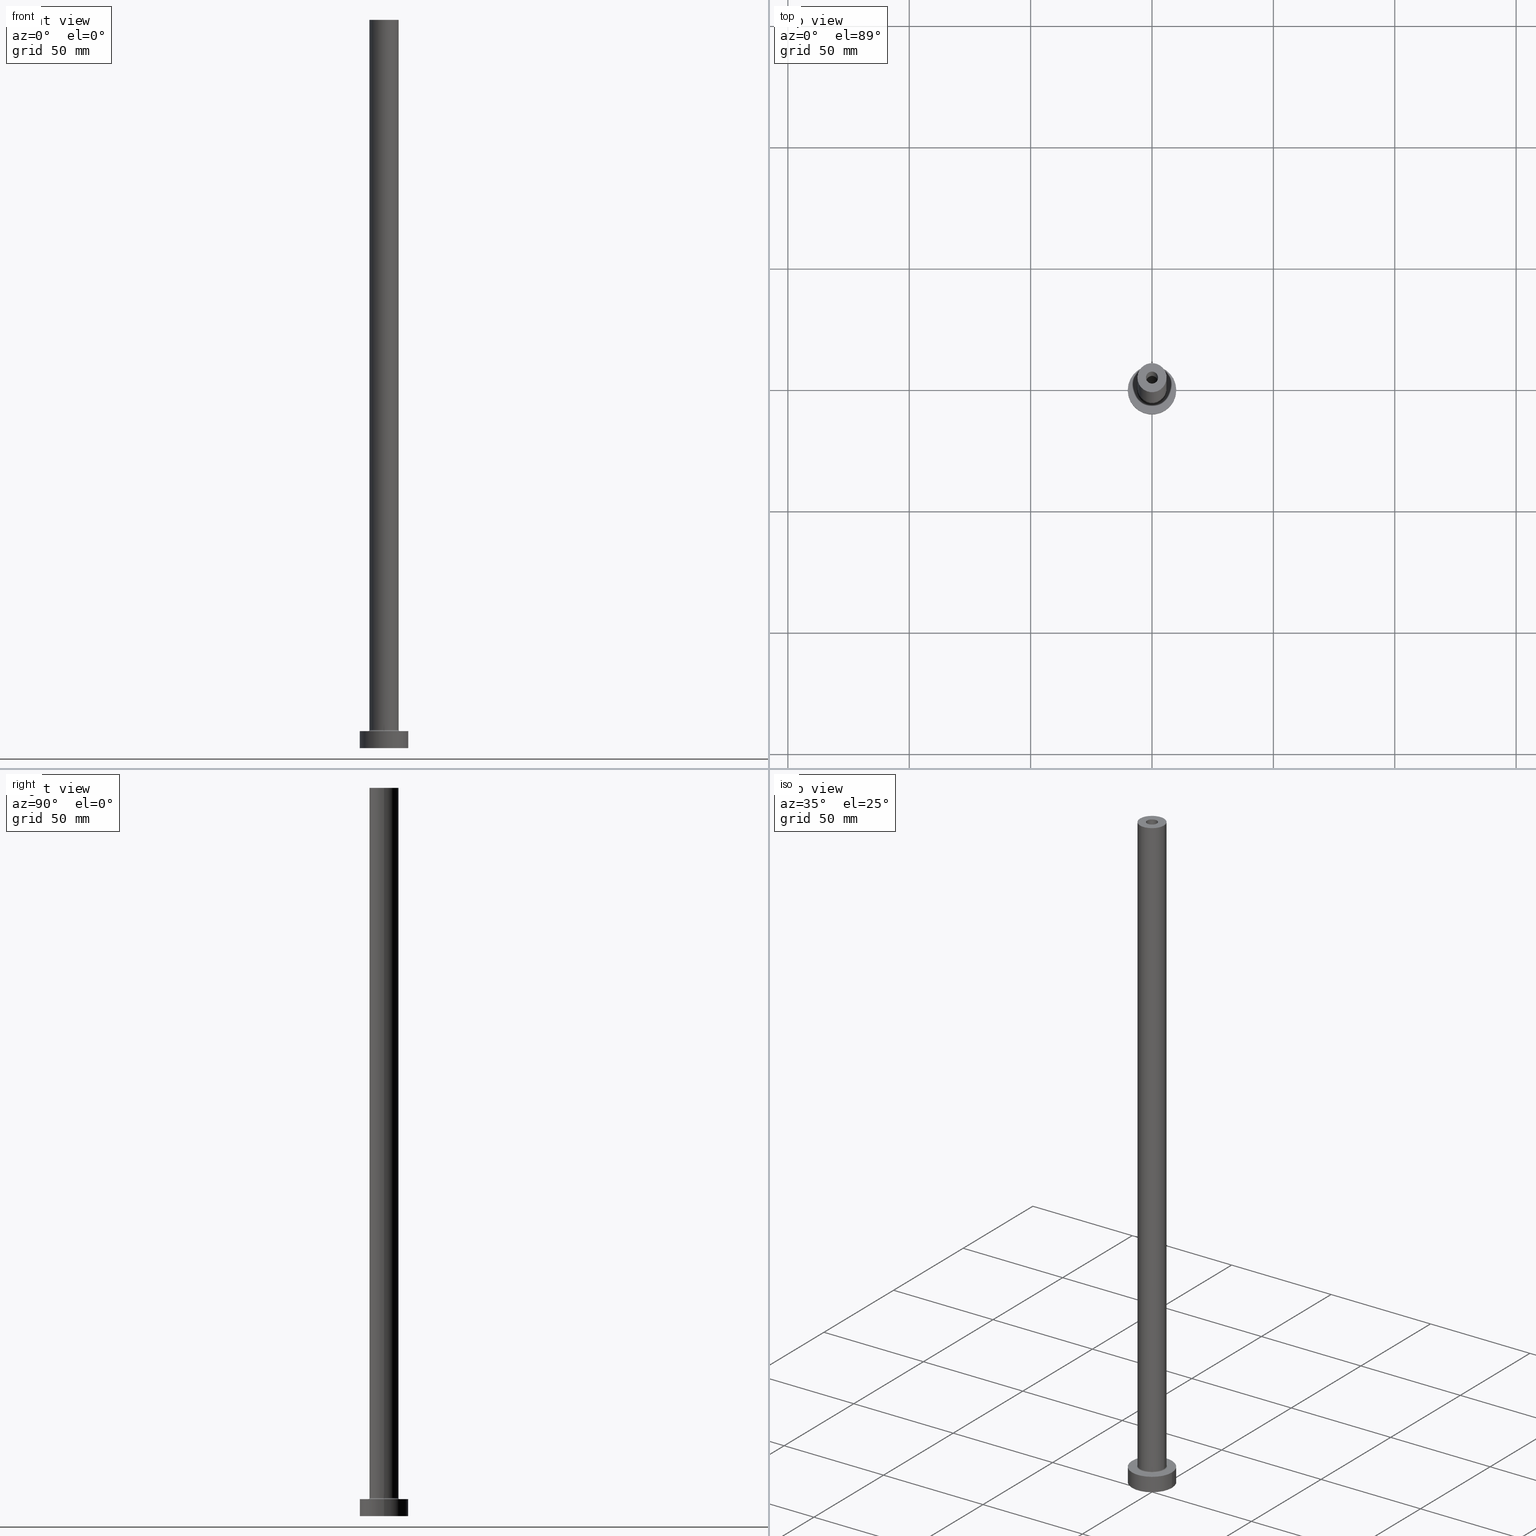
[diagram: canonical four-view strip — front | top / right | iso, engineering-drawing reading convention]
A machine part, canonical four-view strip (front | top / right | iso — engineering-drawing reading convention). The complete STEP part file that produces these views, byte-faithful:
ISO-10303-21;
HEADER;
FILE_DESCRIPTION (( 'STEP AP203' ),
    '1' );
FILE_NAME ('137b.STEP',
    '2023-02-13T16:46:04',
    ( '' ),
    ( '' ),
    'SwSTEP 2.0',
    'SolidWorks 2019',
    '' );
FILE_SCHEMA (( 'CONFIG_CONTROL_DESIGN' ));
ENDSEC;

DATA;
#1 = EDGE_CURVE ( 'NONE', #76, #246, #180, .T. ) ;
#2 = VERTEX_POINT ( 'NONE', #245 ) ;
#3 = APPROVAL_STATUS ( 'not_yet_approved' ) ;
#4 = AXIS2_PLACEMENT_3D ( 'NONE', #163, #241, #126 ) ;
#5 = ORIENTED_EDGE ( 'NONE', *, *, #309, .F. ) ;
#6 = DIRECTION ( 'NONE',  ( 1.000000000000000000, 0.000000000000000000, 0.000000000000000000 ) ) ;
#7 = CARTESIAN_POINT ( 'NONE',  ( 0.000000000000000000, 0.000000000000000000, 7.000000000000000000 ) ) ;
#8 = EDGE_LOOP ( 'NONE', ( #287, #356 ) ) ;
#9 = PERSON_AND_ORGANIZATION ( #193, #267 ) ;
#10 = DATE_AND_TIME ( #47, #444 ) ;
#11 = CIRCLE ( 'NONE', #404, 6.000000000000000888 ) ;
#12 = EDGE_LOOP ( 'NONE', ( #44, #411 ) ) ;
#13 = EDGE_CURVE ( 'NONE', #431, #332, #91, .T. ) ;
#14 = EDGE_LOOP ( 'NONE', ( #69, #259, #80, #144 ) ) ;
#15 = DATE_AND_TIME ( #49, #428 ) ;
#16 = AXIS2_PLACEMENT_3D ( 'NONE', #446, #338, #93 ) ;
#17 = LINE ( 'NONE', #234, #452 ) ;
#18 = DIRECTION ( 'NONE',  ( -0.000000000000000000, -0.000000000000000000, -1.000000000000000000 ) ) ;
#19 = PRODUCT_DEFINITION ( 'NEZN�M�', '', #391, #218 ) ;
#20 = CARTESIAN_POINT ( 'NONE',  ( -2.649999999999999911, 0.000000000000000000, 0.000000000000000000 ) ) ;
#21 = AXIS2_PLACEMENT_3D ( 'NONE', #170, #18, #101 ) ;
#22 = CARTESIAN_POINT ( 'NONE',  ( 0.000000000000000000, 0.000000000000000000, 255.0000000000000000 ) ) ;
#23 = ORIENTED_EDGE ( 'NONE', *, *, #449, .T. ) ;
#24 = FACE_BOUND ( 'NONE', #8, .T. ) ;
#25 = AXIS2_PLACEMENT_3D ( 'NONE', #58, #27, #127 ) ;
#26 = DIRECTION ( 'NONE',  ( -1.000000000000000000, 1.224646799147351482E-16, 0.000000000000000000 ) ) ;
#27 = DIRECTION ( 'NONE',  ( 0.000000000000000000, 0.000000000000000000, 1.000000000000000000 ) ) ;
#28 = EDGE_CURVE ( 'NONE', #340, #48, #40, .T. ) ;
#29 = DIRECTION ( 'NONE',  ( 1.000000000000000000, 0.000000000000000000, 0.000000000000000000 ) ) ;
#30 = DIRECTION ( 'NONE',  ( 0.000000000000000000, 0.000000000000000000, -1.000000000000000000 ) ) ;
#31 = ORIENTED_EDGE ( 'NONE', *, *, #37, .T. ) ;
#32 = CARTESIAN_POINT ( 'NONE',  ( 0.000000000000000000, 0.000000000000000000, 255.0000000000000000 ) ) ;
#33 = CIRCLE ( 'NONE', #265, 2.649999999999999911 ) ;
#34 = DIRECTION ( 'NONE',  ( -1.000000000000000000, 0.000000000000000000, 0.000000000000000000 ) ) ;
#35 = EDGE_LOOP ( 'NONE', ( #226, #220, #328, #304 ) ) ;
#36 = PERSON_AND_ORGANIZATION_ROLE ( 'design_supplier' ) ;
#37 = EDGE_CURVE ( 'NONE', #48, #116, #206, .T. ) ;
#38 = DIRECTION ( 'NONE',  ( 0.000000000000000000, 0.000000000000000000, 1.000000000000000000 ) ) ;
#39 = ORIENTED_EDGE ( 'NONE', *, *, #449, .F. ) ;
#40 = CIRCLE ( 'NONE', #148, 6.000000000000000888 ) ;
#41 = VERTEX_POINT ( 'NONE', #198 ) ;
#42 = COORDINATED_UNIVERSAL_TIME_OFFSET ( 1, 0, .AHEAD. ) ;
#43 = AXIS2_PLACEMENT_3D ( 'NONE', #266, #86, #115 ) ;
#44 = ORIENTED_EDGE ( 'NONE', *, *, #13, .F. ) ;
#45 = DIRECTION ( 'NONE',  ( 0.000000000000000000, 0.000000000000000000, -1.000000000000000000 ) ) ;
#46 = ADVANCED_FACE ( 'NONE', ( #376 ), #410, .T. ) ;
#47 = CALENDAR_DATE ( 2023, 13, 2 ) ;
#48 = VERTEX_POINT ( 'NONE', #94 ) ;
#49 = CALENDAR_DATE ( 2023, 13, 2 ) ;
#50 = ORIENTED_EDGE ( 'NONE', *, *, #131, .T. ) ;
#51 = FACE_BOUND ( 'NONE', #119, .T. ) ;
#52 = FACE_OUTER_BOUND ( 'NONE', #451, .T. ) ;
#53 = PRODUCT ( '137b', '137b', '', ( #360 ) ) ;
#54 = DIRECTION ( 'NONE',  ( -0.000000000000000000, -0.000000000000000000, -1.000000000000000000 ) ) ;
#55 = CARTESIAN_POINT ( 'NONE',  ( 0.000000000000000000, 0.000000000000000000, 7.500000000000007105 ) ) ;
#56 = ADVANCED_FACE ( 'NONE', ( #415 ), #339, .F. ) ;
#57 = CYLINDRICAL_SURFACE ( 'NONE', #418, 10.00000000000000000 ) ;
#58 = CARTESIAN_POINT ( 'NONE',  ( 0.000000000000000000, 0.000000000000000000, 7.000000000000000000 ) ) ;
#59 = DIRECTION ( 'NONE',  ( 0.000000000000000000, 0.000000000000000000, 1.000000000000000000 ) ) ;
#60 = DIRECTION ( 'NONE',  ( 0.000000000000000000, 0.000000000000000000, 1.000000000000000000 ) ) ;
#61 = CARTESIAN_POINT ( 'NONE',  ( 0.000000000000000000, 0.000000000000000000, 7.000000000000000000 ) ) ;
#62 = CARTESIAN_POINT ( 'NONE',  ( 0.000000000000000000, 0.000000000000000000, 0.000000000000000000 ) ) ;
#63 = AXIS2_PLACEMENT_3D ( 'NONE', #373, #344, #403 ) ;
#64 = EDGE_CURVE ( 'NONE', #252, #76, #164, .T. ) ;
#65 = LINE ( 'NONE', #121, #124 ) ;
#66 = VERTEX_POINT ( 'NONE', #450 ) ;
#67 = FACE_OUTER_BOUND ( 'NONE', #177, .T. ) ;
#68 = AXIS2_PLACEMENT_3D ( 'NONE', #55, #60, #97 ) ;
#69 = ORIENTED_EDGE ( 'NONE', *, *, #64, .F. ) ;
#70 = EDGE_LOOP ( 'NONE', ( #161, #128 ) ) ;
#71 = APPROVAL ( #399, 'NEUR�EN�' ) ;
#72 = PERSON_AND_ORGANIZATION_ROLE ( 'creator' ) ;
#73 = CARTESIAN_POINT ( 'NONE',  ( 0.000000000000000000, 0.000000000000000000, 300.0000000000000000 ) ) ;
#74 = ORIENTED_EDGE ( 'NONE', *, *, #441, .T. ) ;
#75 = DIRECTION ( 'NONE',  ( -0.000000000000000000, -0.000000000000000000, -1.000000000000000000 ) ) ;
#76 = VERTEX_POINT ( 'NONE', #273 ) ;
#77 = AXIS2_PLACEMENT_3D ( 'NONE', #269, #235, #307 ) ;
#78 = CARTESIAN_POINT ( 'NONE',  ( 0.000000000000000000, 0.000000000000000000, 0.000000000000000000 ) ) ;
#79 = CYLINDRICAL_SURFACE ( 'NONE', #315, 2.500000000000000000 ) ;
#80 = ORIENTED_EDGE ( 'NONE', *, *, #368, .T. ) ;
#81 = CARTESIAN_POINT ( 'NONE',  ( 0.000000000000000000, 0.000000000000000000, 300.0000000000000000 ) ) ;
#82 = VECTOR ( 'NONE', #405, 1000.000000000000000 ) ;
#83 = APPLICATION_PROTOCOL_DEFINITION ( 'international standard', 'config_control_design', 1994, #212 ) ;
#84 = CIRCLE ( 'NONE', #264, 2.500000000000000000 ) ;
#85 = PRODUCT_RELATED_PRODUCT_CATEGORY ( 'detail', '', ( #53 ) ) ;
#86 = DIRECTION ( 'NONE',  ( 0.000000000000000000, 0.000000000000000000, 1.000000000000000000 ) ) ;
#87 = CIRCLE ( 'NONE', #385, 2.500000000000000000 ) ;
#88 = PERSON_AND_ORGANIZATION ( #193, #267 ) ;
#89 = DIRECTION ( 'NONE',  ( 0.000000000000000000, 0.000000000000000000, 1.000000000000000000 ) ) ;
#90 = FACE_OUTER_BOUND ( 'NONE', #35, .T. ) ;
#91 = CIRCLE ( 'NONE', #77, 10.00000000000000000 ) ;
#92 = DIRECTION ( 'NONE',  ( 1.000000000000000000, 0.000000000000000000, 0.000000000000000000 ) ) ;
#93 = DIRECTION ( 'NONE',  ( 1.000000000000000000, 0.000000000000000000, 0.000000000000000000 ) ) ;
#94 = CARTESIAN_POINT ( 'NONE',  ( 6.000000000000000888, 7.347880794884120722E-16, 300.0000000000000000 ) ) ;
#95 = EDGE_LOOP ( 'NONE', ( #182, #50 ) ) ;
#96 = CARTESIAN_POINT ( 'NONE',  ( 0.000000000000000000, 0.000000000000000000, 300.0000000000000000 ) ) ;
#97 = DIRECTION ( 'NONE',  ( 1.000000000000000000, 0.000000000000000000, 0.000000000000000000 ) ) ;
#98 = DIRECTION ( 'NONE',  ( 0.000000000000000000, 0.000000000000000000, 1.000000000000000000 ) ) ;
#99 = CARTESIAN_POINT ( 'NONE',  ( -6.500000000000000888, 7.960204194457796463E-16, 7.500000000000007105 ) ) ;
#100 = EDGE_CURVE ( 'NONE', #372, #250, #65, .T. ) ;
#101 = DIRECTION ( 'NONE',  ( 1.000000000000000000, 0.000000000000000000, 0.000000000000000000 ) ) ;
#102 = DIRECTION ( 'NONE',  ( -0.000000000000000000, -0.000000000000000000, -1.000000000000000000 ) ) ;
#103 = ORIENTED_EDGE ( 'NONE', *, *, #421, .T. ) ;
#104 = EDGE_CURVE ( 'NONE', #246, #76, #228, .T. ) ;
#105 = EDGE_LOOP ( 'NONE', ( #301, #103 ) ) ;
#106 = DIRECTION ( 'NONE',  ( 0.000000000000000000, 0.000000000000000000, -1.000000000000000000 ) ) ;
#107 = ORIENTED_EDGE ( 'NONE', *, *, #421, .F. ) ;
#108 = DIRECTION ( 'NONE',  ( 1.000000000000000000, 0.000000000000000000, 0.000000000000000000 ) ) ;
#109 = AXIS2_PLACEMENT_3D ( 'NONE', #32, #205, #209 ) ;
#110 = DIRECTION ( 'NONE',  ( -1.000000000000000000, 0.000000000000000000, 0.000000000000000000 ) ) ;
#111 = ORIENTED_EDGE ( 'NONE', *, *, #191, .T. ) ;
#112 = DIRECTION ( 'NONE',  ( 1.000000000000000000, 0.000000000000000000, 0.000000000000000000 ) ) ;
#113 = ORIENTED_EDGE ( 'NONE', *, *, #248, .T. ) ;
#114 = ADVANCED_FACE ( 'NONE', ( #203, #384 ), #317, .F. ) ;
#115 = DIRECTION ( 'NONE',  ( 1.000000000000000000, 0.000000000000000000, -0.000000000000000000 ) ) ;
#116 = VERTEX_POINT ( 'NONE', #210 ) ;
#117 = DATE_TIME_ROLE ( 'creation_date' ) ;
#118 = EDGE_CURVE ( 'NONE', #135, #66, #84, .T. ) ;
#119 = EDGE_LOOP ( 'NONE', ( #214, #5 ) ) ;
#120 = DIRECTION ( 'NONE',  ( 0.000000000000000000, 0.000000000000000000, 1.000000000000000000 ) ) ;
#121 = CARTESIAN_POINT ( 'NONE',  ( 2.649999999999999911, 3.245314017740485962E-16, 262.4953318805773961 ) ) ;
#122 = DIRECTION ( 'NONE',  ( 0.000000000000000000, 0.000000000000000000, 1.000000000000000000 ) ) ;
#123 = ADVANCED_FACE ( 'NONE', ( #272 ), #175, .F. ) ;
#124 = VECTOR ( 'NONE', #243, 1000.000000000000000 ) ;
#125 = DIRECTION ( 'NONE',  ( 1.000000000000000000, 0.000000000000000000, 0.000000000000000000 ) ) ;
#126 = DIRECTION ( 'NONE',  ( -1.000000000000000000, 0.000000000000000000, 0.000000000000000000 ) ) ;
#127 = DIRECTION ( 'NONE',  ( 1.000000000000000000, 0.000000000000000000, 0.000000000000000000 ) ) ;
#128 = ORIENTED_EDGE ( 'NONE', *, *, #363, .F. ) ;
#129 = CIRCLE ( 'NONE', #151, 10.00000000000000000 ) ;
#130 = AXIS2_PLACEMENT_3D ( 'NONE', #172, #98, #420 ) ;
#131 = EDGE_CURVE ( 'NONE', #147, #2, #442, .T. ) ;
#132 = ORIENTED_EDGE ( 'NONE', *, *, #100, .T. ) ;
#133 = ADVANCED_FACE ( 'NONE', ( #392 ), #422, .T. ) ;
#134 = CARTESIAN_POINT ( 'NONE',  ( 0.000000000000000000, 0.000000000000000000, 7.000000000000000000 ) ) ;
#135 = VERTEX_POINT ( 'NONE', #419 ) ;
#136 = VECTOR ( 'NONE', #416, 1000.000000000000000 ) ;
#137 = DIRECTION ( 'NONE',  ( -1.000000000000000000, 0.000000000000000000, 0.000000000000000000 ) ) ;
#138 = EDGE_LOOP ( 'NONE', ( #152, #460, #242, #280 ) ) ;
#139 = CARTESIAN_POINT ( 'NONE',  ( 0.000000000000000000, 0.000000000000000000, 0.000000000000000000 ) ) ;
#140 = ORIENTED_EDGE ( 'NONE', *, *, #191, .F. ) ;
#141 = CARTESIAN_POINT ( 'NONE',  ( 0.000000000000000000, 0.000000000000000000, 255.0000000000000000 ) ) ;
#142 = CIRCLE ( 'NONE', #440, 6.000000000000000888 ) ;
#143 = DIRECTION ( 'NONE',  ( 0.000000000000000000, 0.000000000000000000, -1.000000000000000000 ) ) ;
#144 = ORIENTED_EDGE ( 'NONE', *, *, #1, .F. ) ;
#145 = EDGE_CURVE ( 'NONE', #340, #252, #430, .T. ) ;
#146 = FACE_BOUND ( 'NONE', #70, .T. ) ;
#147 = VERTEX_POINT ( 'NONE', #215 ) ;
#148 = AXIS2_PLACEMENT_3D ( 'NONE', #350, #408, #380 ) ;
#149 = APPROVAL_DATE_TIME ( #10, #71 ) ;
#150 = ADVANCED_FACE ( 'NONE', ( #67 ), #355, .F. ) ;
#151 = AXIS2_PLACEMENT_3D ( 'NONE', #139, #283, #424 ) ;
#152 = ORIENTED_EDGE ( 'NONE', *, *, #100, .F. ) ;
#153 = ORIENTED_EDGE ( 'NONE', *, *, #456, .F. ) ;
#154 = ORIENTED_EDGE ( 'NONE', *, *, #28, .F. ) ;
#155 = CARTESIAN_POINT ( 'NONE',  ( 10.00000000000000000, 1.224646799147353256E-15, 7.000000000000000000 ) ) ;
#156 = CIRCLE ( 'NONE', #16, 2.649999999999999911 ) ;
#157 = APPROVAL ( #3, 'NEUR�EN�' ) ;
#158 = CARTESIAN_POINT ( 'NONE',  ( 0.000000000000000000, 0.000000000000000000, 300.0000000000000000 ) ) ;
#159 = UNCERTAINTY_MEASURE_WITH_UNIT (LENGTH_MEASURE( 1.000000000000000082E-05 ), #258, 'distance_accuracy_value', 'NONE');
#160 = DIRECTION ( 'NONE',  ( 1.000000000000000000, 0.000000000000000000, -0.000000000000000000 ) ) ;
#161 = ORIENTED_EDGE ( 'NONE', *, *, #347, .F. ) ;
#162 = COORDINATED_UNIVERSAL_TIME_OFFSET ( 1, 0, .AHEAD. ) ;
#163 = CARTESIAN_POINT ( 'NONE',  ( 0.000000000000000000, 0.000000000000000000, 262.4953318805773961 ) ) ;
#164 = CIRCLE ( 'NONE', #335, 0.5000000000000004441 ) ;
#165 = DIRECTION ( 'NONE',  ( 0.000000000000000000, 0.000000000000000000, 1.000000000000000000 ) ) ;
#166 = DIRECTION ( 'NONE',  ( 1.000000000000000000, 0.000000000000000000, 0.000000000000000000 ) ) ;
#167 = ADVANCED_FACE ( 'NONE', ( #394 ), #79, .F. ) ;
#168 = AXIS2_PLACEMENT_3D ( 'NONE', #349, #268, #293 ) ;
#169 = LOCAL_TIME ( 17, 46, 4.000000000000000000, #162 ) ;
#170 = CARTESIAN_POINT ( 'NONE',  ( 0.000000000000000000, 0.000000000000000000, 7.000000000000000000 ) ) ;
#171 = CLOSED_SHELL ( 'NONE', ( #167, #255, #56, #46, #318, #262, #429, #323, #133, #333, #123, #225, #114, #150 ) ) ;
#172 = CARTESIAN_POINT ( 'NONE',  ( 0.000000000000000000, 0.000000000000000000, 7.000000000000000000 ) ) ;
#173 = ORIENTED_EDGE ( 'NONE', *, *, #441, .F. ) ;
#174 = EDGE_CURVE ( 'NONE', #2, #147, #383, .T. ) ;
#175 = TOROIDAL_SURFACE ( 'NONE', #299, 6.500000000000000888, 0.5000000000000000000 ) ;
#176 = LINE ( 'NONE', #219, #437 ) ;
#177 = EDGE_LOOP ( 'NONE', ( #153, #425, #111, #393 ) ) ;
#178 = DIRECTION ( 'NONE',  ( 1.000000000000000000, 0.000000000000000000, 0.000000000000000000 ) ) ;
#179 = ADVANCED_BREP_SHAPE_REPRESENTATION ( '137b', ( #297, #300 ), #244 ) ;
#180 = CIRCLE ( 'NONE', #433, 6.500000000000000888 ) ;
#181 = CYLINDRICAL_SURFACE ( 'NONE', #369, 2.649999999999999911 ) ;
#182 = ORIENTED_EDGE ( 'NONE', *, *, #174, .T. ) ;
#183 = APPLICATION_PROTOCOL_DEFINITION ( 'international standard', 'config_control_design', 1994, #236 ) ;
#184 = ORIENTED_EDGE ( 'NONE', *, *, #118, .T. ) ;
#185 = CIRCLE ( 'NONE', #109, 2.500000000000000000 ) ;
#186 = DIRECTION ( 'NONE',  ( 0.000000000000000000, 0.000000000000000000, 1.000000000000000000 ) ) ;
#187 = AXIS2_PLACEMENT_3D ( 'NONE', #96, #89, #374 ) ;
#188 = LOCAL_TIME ( 17, 46, 4.000000000000000000, #295 ) ;
#189 = CYLINDRICAL_SURFACE ( 'NONE', #4, 2.649999999999999911 ) ;
#190 = PERSON_AND_ORGANIZATION_ROLE ( 'design_owner' ) ;
#191 = EDGE_CURVE ( 'NONE', #41, #66, #176, .T. ) ;
#192 = CARTESIAN_POINT ( 'NONE',  ( 2.500000000000000000, 3.061616997868382648E-16, 300.0000000000000000 ) ) ;
#193 = PERSON ( 'NEUR�EN�', 'NEUR�EN�', 'NEUR�EN�', ('NEUR�EN�'), ('NEUR�EN�'), ('NEUR�EN�') ) ;
#194 = APPROVAL_PERSON_ORGANIZATION ( #305, #407, #263 ) ;
#195 = CARTESIAN_POINT ( 'NONE',  ( -2.649999999999999911, 0.000000000000000000, 255.0000000000000000 ) ) ;
#196 = CC_DESIGN_PERSON_AND_ORGANIZATION_ASSIGNMENT ( #88, #341, ( #279 ) ) ;
#197 = FACE_OUTER_BOUND ( 'NONE', #105, .T. ) ;
#198 = CARTESIAN_POINT ( 'NONE',  ( -2.500000000000000000, 0.000000000000000000, 300.0000000000000000 ) ) ;
#199 = AXIS2_PLACEMENT_3D ( 'NONE', #454, #417, #106 ) ;
#200 = VECTOR ( 'NONE', #45, 1000.000000000000000 ) ;
#201 = SECURITY_CLASSIFICATION_LEVEL ( 'unclassified' ) ;
#202 = CARTESIAN_POINT ( 'NONE',  ( -6.000000000000000888, 0.000000000000000000, 300.0000000000000000 ) ) ;
#203 = FACE_BOUND ( 'NONE', #294, .T. ) ;
#204 = CC_DESIGN_PERSON_AND_ORGANIZATION_ASSIGNMENT ( #253, #36, ( #391 ) ) ;
#205 = DIRECTION ( 'NONE',  ( 0.000000000000000000, 0.000000000000000000, 1.000000000000000000 ) ) ;
#206 = LINE ( 'NONE', #382, #136 ) ;
#207 = CIRCLE ( 'NONE', #63, 2.649999999999999911 ) ;
#208 = CC_DESIGN_APPROVAL ( #71, ( #391 ) ) ;
#209 = DIRECTION ( 'NONE',  ( 1.000000000000000000, 0.000000000000000000, 0.000000000000000000 ) ) ;
#210 = CARTESIAN_POINT ( 'NONE',  ( 6.000000000000000888, 7.347880794884120722E-16, 7.500000000000007105 ) ) ;
#211 = CARTESIAN_POINT ( 'NONE',  ( 0.000000000000000000, 0.000000000000000000, 300.0000000000000000 ) ) ;
#212 = APPLICATION_CONTEXT ( 'configuration controlled 3d designs of mechanical parts and assemblies' ) ;
#213 = EDGE_CURVE ( 'NONE', #332, #431, #129, .T. ) ;
#214 = ORIENTED_EDGE ( 'NONE', *, *, #436, .F. ) ;
#215 = CARTESIAN_POINT ( 'NONE',  ( 10.00000000000000000, 1.224646799147353256E-15, 7.000000000000000000 ) ) ;
#216 = ORIENTED_EDGE ( 'NONE', *, *, #145, .T. ) ;
#217 = PERSON_AND_ORGANIZATION ( #193, #267 ) ;
#218 = DESIGN_CONTEXT ( 'detailed design', #236, 'design' ) ;
#219 = CARTESIAN_POINT ( 'NONE',  ( -2.500000000000000000, 0.000000000000000000, 300.0000000000000000 ) ) ;
#220 = ORIENTED_EDGE ( 'NONE', *, *, #174, .F. ) ;
#221 = DIRECTION ( 'NONE',  ( 0.000000000000000000, 0.000000000000000000, 1.000000000000000000 ) ) ;
#222 = ORIENTED_EDGE ( 'NONE', *, *, #368, .F. ) ;
#223 = EDGE_LOOP ( 'NONE', ( #107, #31, #113, #291 ) ) ;
#224 = PERSON_AND_ORGANIZATION ( #193, #267 ) ;
#225 = ADVANCED_FACE ( 'NONE', ( #358 ), #181, .F. ) ;
#226 = ORIENTED_EDGE ( 'NONE', *, *, #240, .F. ) ;
#227 = APPROVAL_ROLE ( '' ) ;
#228 = CIRCLE ( 'NONE', #21, 6.500000000000000888 ) ;
#229 = ORIENTED_EDGE ( 'NONE', *, *, #64, .T. ) ;
#230 = DATE_AND_TIME ( #343, #169 ) ;
#231 = CARTESIAN_POINT ( 'NONE',  ( 10.00000000000000000, 1.224646799147353256E-15, 0.000000000000000000 ) ) ;
#232 = CC_DESIGN_SECURITY_CLASSIFICATION ( #279, ( #391 ) ) ;
#233 = CARTESIAN_POINT ( 'NONE',  ( 6.500000000000000888, 0.000000000000000000, 7.000000000000002665 ) ) ;
#234 = CARTESIAN_POINT ( 'NONE',  ( -2.649999999999999911, 0.000000000000000000, 262.4953318805773961 ) ) ;
#235 = DIRECTION ( 'NONE',  ( 0.000000000000000000, 0.000000000000000000, 1.000000000000000000 ) ) ;
#236 = APPLICATION_CONTEXT ( 'configuration controlled 3d designs of mechanical parts and assemblies' ) ;
#237 = APPROVAL_STATUS ( 'not_yet_approved' ) ;
#238 = LINE ( 'NONE', #155, #389 ) ;
#239 = CARTESIAN_POINT ( 'NONE',  ( 0.000000000000000000, 0.000000000000000000, 7.500000000000007105 ) ) ;
#240 = EDGE_CURVE ( 'NONE', #147, #332, #238, .T. ) ;
#241 = DIRECTION ( 'NONE',  ( 0.000000000000000000, 0.000000000000000000, -1.000000000000000000 ) ) ;
#242 = ORIENTED_EDGE ( 'NONE', *, *, #271, .T. ) ;
#243 = DIRECTION ( 'NONE',  ( 0.000000000000000000, 0.000000000000000000, -1.000000000000000000 ) ) ;
#244 =( GEOMETRIC_REPRESENTATION_CONTEXT ( 3 ) GLOBAL_UNCERTAINTY_ASSIGNED_CONTEXT ( ( #159 ) ) GLOBAL_UNIT_ASSIGNED_CONTEXT ( ( #258, #357, #336 ) ) REPRESENTATION_CONTEXT ( 'NONE', 'WORKASPACE' ) );
#245 = CARTESIAN_POINT ( 'NONE',  ( -10.00000000000000000, 0.000000000000000000, 7.000000000000000000 ) ) ;
#246 = VERTEX_POINT ( 'NONE', #233 ) ;
#247 = FACE_OUTER_BOUND ( 'NONE', #95, .T. ) ;
#248 = EDGE_CURVE ( 'NONE', #116, #252, #11, .T. ) ;
#249 = CARTESIAN_POINT ( 'NONE',  ( -6.000000000000000888, 0.000000000000000000, 300.0000000000000000 ) ) ;
#250 = VERTEX_POINT ( 'NONE', #406 ) ;
#251 = DIRECTION ( 'NONE',  ( -0.000000000000000000, -0.000000000000000000, -1.000000000000000000 ) ) ;
#252 = VERTEX_POINT ( 'NONE', #370 ) ;
#253 = PERSON_AND_ORGANIZATION ( #193, #267 ) ;
#254 = VERTEX_POINT ( 'NONE', #195 ) ;
#255 = ADVANCED_FACE ( 'NONE', ( #270 ), #189, .F. ) ;
#256 = DIRECTION ( 'NONE',  ( 0.000000000000000000, 0.000000000000000000, 1.000000000000000000 ) ) ;
#257 = ORIENTED_EDGE ( 'NONE', *, *, #131, .F. ) ;
#258 =( LENGTH_UNIT ( ) NAMED_UNIT ( * ) SI_UNIT ( .MILLI., .METRE. ) );
#259 = ORIENTED_EDGE ( 'NONE', *, *, #248, .F. ) ;
#260 = PERSON_AND_ORGANIZATION ( #193, #267 ) ;
#261 = VECTOR ( 'NONE', #75, 1000.000000000000000 ) ;
#262 = ADVANCED_FACE ( 'NONE', ( #90 ), #377, .T. ) ;
#263 = APPROVAL_ROLE ( '' ) ;
#264 = AXIS2_PLACEMENT_3D ( 'NONE', #311, #447, #125 ) ;
#265 = AXIS2_PLACEMENT_3D ( 'NONE', #141, #186, #285 ) ;
#266 = CARTESIAN_POINT ( 'NONE',  ( 0.000000000000000000, 0.000000000000000000, 0.000000000000000000 ) ) ;
#267 = ORGANIZATION ( 'NEUR�EN�', 'NEUR�EN�', '' ) ;
#268 = DIRECTION ( 'NONE',  ( -0.000000000000000000, -0.000000000000000000, -1.000000000000000000 ) ) ;
#269 = CARTESIAN_POINT ( 'NONE',  ( 0.000000000000000000, 0.000000000000000000, 0.000000000000000000 ) ) ;
#270 = FACE_OUTER_BOUND ( 'NONE', #427, .T. ) ;
#271 = EDGE_CURVE ( 'NONE', #254, #353, #17, .T. ) ;
#272 = FACE_OUTER_BOUND ( 'NONE', #14, .T. ) ;
#273 = CARTESIAN_POINT ( 'NONE',  ( -6.500000000000000888, 7.960204194457796463E-16, 7.000000000000002665 ) ) ;
#274 = LOCAL_TIME ( 17, 46, 4.000000000000000000, #42 ) ;
#275 = DIRECTION ( 'NONE',  ( -0.000000000000000000, -0.000000000000000000, -1.000000000000000000 ) ) ;
#276 = DIRECTION ( 'NONE',  ( -0.000000000000000000, -0.000000000000000000, -1.000000000000000000 ) ) ;
#277 = EDGE_LOOP ( 'NONE', ( #173, #229, #455, #222 ) ) ;
#278 = PRODUCT_DEFINITION_SHAPE ( 'NONE', 'NONE',  #19 ) ;
#279 = SECURITY_CLASSIFICATION ( '', '', #201 ) ;
#280 = ORIENTED_EDGE ( 'NONE', *, *, #347, .T. ) ;
#281 = AXIS2_PLACEMENT_3D ( 'NONE', #22, #165, #160 ) ;
#282 = CC_DESIGN_DATE_AND_TIME_ASSIGNMENT ( #432, #117, ( #19 ) ) ;
#283 = DIRECTION ( 'NONE',  ( 0.000000000000000000, 0.000000000000000000, 1.000000000000000000 ) ) ;
#284 = EDGE_LOOP ( 'NONE', ( #39, #423 ) ) ;
#285 = DIRECTION ( 'NONE',  ( 1.000000000000000000, 0.000000000000000000, 0.000000000000000000 ) ) ;
#286 = DIRECTION ( 'NONE',  ( 0.000000000000000000, 0.000000000000000000, -1.000000000000000000 ) ) ;
#287 = ORIENTED_EDGE ( 'NONE', *, *, #104, .T. ) ;
#288 = AXIS2_PLACEMENT_3D ( 'NONE', #73, #251, #137 ) ;
#289 = LINE ( 'NONE', #192, #200 ) ;
#290 = CC_DESIGN_APPROVAL ( #157, ( #19 ) ) ;
#291 = ORIENTED_EDGE ( 'NONE', *, *, #145, .F. ) ;
#292 = APPROVAL_DATE_TIME ( #334, #157 ) ;
#293 = DIRECTION ( 'NONE',  ( -1.000000000000000000, 0.000000000000000000, 0.000000000000000000 ) ) ;
#294 = EDGE_LOOP ( 'NONE', ( #395, #184 ) ) ;
#295 = COORDINATED_UNIVERSAL_TIME_OFFSET ( 1, 0, .AHEAD. ) ;
#296 = EDGE_CURVE ( 'NONE', #372, #254, #207, .T. ) ;
#297 = MANIFOLD_SOLID_BREP ( 'Odebrat vysunut�m4', #171 ) ;
#298 = PERSON_AND_ORGANIZATION ( #193, #267 ) ;
#299 = AXIS2_PLACEMENT_3D ( 'NONE', #239, #378, #314 ) ;
#300 = AXIS2_PLACEMENT_3D ( 'NONE', #78, #221, #6 ) ;
#301 = ORIENTED_EDGE ( 'NONE', *, *, #28, .T. ) ;
#302 = CC_DESIGN_PERSON_AND_ORGANIZATION_ASSIGNMENT ( #224, #190, ( #53 ) ) ;
#303 = LINE ( 'NONE', #439, #82 ) ;
#304 = ORIENTED_EDGE ( 'NONE', *, *, #13, .T. ) ;
#305 = PERSON_AND_ORGANIZATION ( #193, #267 ) ;
#306 = DIRECTION ( 'NONE',  ( -1.000000000000000000, 0.000000000000000000, 0.000000000000000000 ) ) ;
#307 = DIRECTION ( 'NONE',  ( 1.000000000000000000, 0.000000000000000000, 0.000000000000000000 ) ) ;
#308 = APPROVAL_DATE_TIME ( #15, #407 ) ;
#309 = EDGE_CURVE ( 'NONE', #361, #41, #330, .T. ) ;
#310 = FACE_OUTER_BOUND ( 'NONE', #12, .T. ) ;
#311 = CARTESIAN_POINT ( 'NONE',  ( 0.000000000000000000, 0.000000000000000000, 255.0000000000000000 ) ) ;
#312 = DATE_TIME_ROLE ( 'classification_date' ) ;
#313 = CARTESIAN_POINT ( 'NONE',  ( 0.000000000000000000, 0.000000000000000000, 7.500000000000007105 ) ) ;
#314 = DIRECTION ( 'NONE',  ( 1.000000000000000000, 0.000000000000000000, 0.000000000000000000 ) ) ;
#315 = AXIS2_PLACEMENT_3D ( 'NONE', #320, #143, #457 ) ;
#316 = APPROVAL_PERSON_ORGANIZATION ( #260, #71, #227 ) ;
#317 = PLANE ( 'NONE',  #281 ) ;
#318 = ADVANCED_FACE ( 'NONE', ( #52 ), #57, .T. ) ;
#319 = CARTESIAN_POINT ( 'NONE',  ( -10.00000000000000000, 0.000000000000000000, 0.000000000000000000 ) ) ;
#320 = CARTESIAN_POINT ( 'NONE',  ( 0.000000000000000000, 0.000000000000000000, 300.0000000000000000 ) ) ;
#321 = ORIENTED_EDGE ( 'NONE', *, *, #213, .T. ) ;
#322 = CIRCLE ( 'NONE', #199, 0.5000000000000004441 ) ;
#323 = ADVANCED_FACE ( 'NONE', ( #146, #310 ), #434, .F. ) ;
#324 = DIRECTION ( 'NONE',  ( 0.000000000000000000, 0.000000000000000000, -1.000000000000000000 ) ) ;
#325 = ORIENTED_EDGE ( 'NONE', *, *, #354, .F. ) ;
#326 = CALENDAR_DATE ( 2023, 13, 2 ) ;
#327 = CARTESIAN_POINT ( 'NONE',  ( 0.000000000000000000, 0.000000000000000000, 262.4953318805773961 ) ) ;
#328 = ORIENTED_EDGE ( 'NONE', *, *, #354, .T. ) ;
#329 = EDGE_LOOP ( 'NONE', ( #388, #154, #216, #74 ) ) ;
#330 = CIRCLE ( 'NONE', #187, 2.500000000000000000 ) ;
#331 = DIRECTION ( 'NONE',  ( 1.000000000000000000, 0.000000000000000000, 0.000000000000000000 ) ) ;
#332 = VERTEX_POINT ( 'NONE', #231 ) ;
#333 = ADVANCED_FACE ( 'NONE', ( #51, #197 ), #443, .T. ) ;
#334 = DATE_AND_TIME ( #326, #274 ) ;
#335 = AXIS2_PLACEMENT_3D ( 'NONE', #99, #346, #26 ) ;
#336 =( NAMED_UNIT ( * ) SI_UNIT ( $, .STERADIAN. ) SOLID_ANGLE_UNIT ( ) );
#337 = AXIS2_PLACEMENT_3D ( 'NONE', #211, #30, #34 ) ;
#338 = DIRECTION ( 'NONE',  ( -0.000000000000000000, -0.000000000000000000, -1.000000000000000000 ) ) ;
#339 = TOROIDAL_SURFACE ( 'NONE', #68, 6.500000000000000888, 0.5000000000000000000 ) ;
#340 = VERTEX_POINT ( 'NONE', #202 ) ;
#341 = PERSON_AND_ORGANIZATION_ROLE ( 'classification_officer' ) ;
#342 = DIRECTION ( 'NONE',  ( -0.000000000000000000, -0.000000000000000000, -1.000000000000000000 ) ) ;
#343 = CALENDAR_DATE ( 2023, 13, 2 ) ;
#344 = DIRECTION ( 'NONE',  ( 0.000000000000000000, 0.000000000000000000, 1.000000000000000000 ) ) ;
#345 = CIRCLE ( 'NONE', #398, 2.649999999999999911 ) ;
#346 = DIRECTION ( 'NONE',  ( 1.224646799147353207E-16, 1.000000000000000000, -0.000000000000000000 ) ) ;
#347 = EDGE_CURVE ( 'NONE', #353, #250, #156, .T. ) ;
#348 = COORDINATED_UNIVERSAL_TIME_OFFSET ( 1, 0, .AHEAD. ) ;
#349 = CARTESIAN_POINT ( 'NONE',  ( 0.000000000000000000, 0.000000000000000000, 7.000000000000000000 ) ) ;
#350 = CARTESIAN_POINT ( 'NONE',  ( 0.000000000000000000, 0.000000000000000000, 300.0000000000000000 ) ) ;
#351 = CARTESIAN_POINT ( 'NONE',  ( 0.000000000000000000, 0.000000000000000000, 300.0000000000000000 ) ) ;
#352 = CARTESIAN_POINT ( 'NONE',  ( 0.000000000000000000, 0.000000000000000000, 300.0000000000000000 ) ) ;
#353 = VERTEX_POINT ( 'NONE', #20 ) ;
#354 = EDGE_CURVE ( 'NONE', #2, #431, #303, .T. ) ;
#355 = CYLINDRICAL_SURFACE ( 'NONE', #337, 2.500000000000000000 ) ;
#356 = ORIENTED_EDGE ( 'NONE', *, *, #1, .T. ) ;
#357 =( NAMED_UNIT ( * ) PLANE_ANGLE_UNIT ( ) SI_UNIT ( $, .RADIAN. ) );
#358 = FACE_OUTER_BOUND ( 'NONE', #138, .T. ) ;
#359 = ORIENTED_EDGE ( 'NONE', *, *, #436, .T. ) ;
#360 = MECHANICAL_CONTEXT ( 'NONE', #212, 'mechanical' ) ;
#361 = VERTEX_POINT ( 'NONE', #459 ) ;
#362 = APPROVAL_ROLE ( '' ) ;
#363 = EDGE_CURVE ( 'NONE', #250, #353, #345, .T. ) ;
#364 = ORIENTED_EDGE ( 'NONE', *, *, #375, .F. ) ;
#365 = AXIS2_PLACEMENT_3D ( 'NONE', #158, #120, #409 ) ;
#366 = APPROVAL_PERSON_ORGANIZATION ( #217, #157, #362 ) ;
#367 = COORDINATED_UNIVERSAL_TIME_OFFSET ( 1, 0, .AHEAD. ) ;
#368 = EDGE_CURVE ( 'NONE', #116, #246, #322, .T. ) ;
#369 = AXIS2_PLACEMENT_3D ( 'NONE', #327, #286, #110 ) ;
#370 = CARTESIAN_POINT ( 'NONE',  ( -6.000000000000000888, 0.000000000000000000, 7.500000000000007105 ) ) ;
#371 = CIRCLE ( 'NONE', #412, 6.000000000000000888 ) ;
#372 = VERTEX_POINT ( 'NONE', #379 ) ;
#373 = CARTESIAN_POINT ( 'NONE',  ( 0.000000000000000000, 0.000000000000000000, 255.0000000000000000 ) ) ;
#374 = DIRECTION ( 'NONE',  ( 1.000000000000000000, 0.000000000000000000, 0.000000000000000000 ) ) ;
#375 = EDGE_CURVE ( 'NONE', #66, #135, #185, .T. ) ;
#376 = FACE_OUTER_BOUND ( 'NONE', #223, .T. ) ;
#377 = CYLINDRICAL_SURFACE ( 'NONE', #168, 10.00000000000000000 ) ;
#378 = DIRECTION ( 'NONE',  ( 0.000000000000000000, 0.000000000000000000, 1.000000000000000000 ) ) ;
#379 = CARTESIAN_POINT ( 'NONE',  ( 2.649999999999999911, 3.245314017740485962E-16, 255.0000000000000000 ) ) ;
#380 = DIRECTION ( 'NONE',  ( 1.000000000000000000, 0.000000000000000000, 0.000000000000000000 ) ) ;
#381 = CC_DESIGN_PERSON_AND_ORGANIZATION_ASSIGNMENT ( #298, #438, ( #391 ) ) ;
#382 = CARTESIAN_POINT ( 'NONE',  ( 6.000000000000000888, 7.347880794884120722E-16, 300.0000000000000000 ) ) ;
#383 = CIRCLE ( 'NONE', #426, 10.00000000000000000 ) ;
#384 = FACE_OUTER_BOUND ( 'NONE', #284, .T. ) ;
#385 = AXIS2_PLACEMENT_3D ( 'NONE', #81, #461, #108 ) ;
#386 = ORIENTED_EDGE ( 'NONE', *, *, #271, .F. ) ;
#387 = ORIENTED_EDGE ( 'NONE', *, *, #240, .T. ) ;
#388 = ORIENTED_EDGE ( 'NONE', *, *, #37, .F. ) ;
#389 = VECTOR ( 'NONE', #342, 1000.000000000000000 ) ;
#390 = EDGE_LOOP ( 'NONE', ( #359, #458, #364, #140 ) ) ;
#391 = PRODUCT_DEFINITION_FORMATION_WITH_SPECIFIED_SOURCE ( 'LIBOVOLN�', '', #53, .NOT_KNOWN. ) ;
#392 = FACE_OUTER_BOUND ( 'NONE', #329, .T. ) ;
#393 = ORIENTED_EDGE ( 'NONE', *, *, #118, .F. ) ;
#394 = FACE_OUTER_BOUND ( 'NONE', #390, .T. ) ;
#395 = ORIENTED_EDGE ( 'NONE', *, *, #375, .T. ) ;
#396 = CARTESIAN_POINT ( 'NONE',  ( 0.000000000000000000, 0.000000000000000000, 7.500000000000007105 ) ) ;
#397 = ORIENTED_EDGE ( 'NONE', *, *, #363, .T. ) ;
#398 = AXIS2_PLACEMENT_3D ( 'NONE', #62, #102, #166 ) ;
#399 = APPROVAL_STATUS ( 'not_yet_approved' ) ;
#400 = CC_DESIGN_PERSON_AND_ORGANIZATION_ASSIGNMENT ( #9, #72, ( #19 ) ) ;
#401 = AXIS2_PLACEMENT_3D ( 'NONE', #352, #275, #445 ) ;
#402 = SHAPE_DEFINITION_REPRESENTATION ( #278, #179 ) ;
#403 = DIRECTION ( 'NONE',  ( 1.000000000000000000, 0.000000000000000000, 0.000000000000000000 ) ) ;
#404 = AXIS2_PLACEMENT_3D ( 'NONE', #313, #122, #331 ) ;
#405 = DIRECTION ( 'NONE',  ( -0.000000000000000000, -0.000000000000000000, -1.000000000000000000 ) ) ;
#406 = CARTESIAN_POINT ( 'NONE',  ( 2.649999999999999911, 3.245314017740485962E-16, 0.000000000000000000 ) ) ;
#407 = APPROVAL ( #237, 'NEUR�EN�' ) ;
#408 = DIRECTION ( 'NONE',  ( 0.000000000000000000, 0.000000000000000000, 1.000000000000000000 ) ) ;
#409 = DIRECTION ( 'NONE',  ( 1.000000000000000000, 0.000000000000000000, -0.000000000000000000 ) ) ;
#410 = CYLINDRICAL_SURFACE ( 'NONE', #401, 6.000000000000000888 ) ;
#411 = ORIENTED_EDGE ( 'NONE', *, *, #213, .F. ) ;
#412 = AXIS2_PLACEMENT_3D ( 'NONE', #396, #256, #178 ) ;
#413 = CC_DESIGN_DATE_AND_TIME_ASSIGNMENT ( #230, #312, ( #279 ) ) ;
#414 = PLANE ( 'NONE',  #130 ) ;
#415 = FACE_OUTER_BOUND ( 'NONE', #277, .T. ) ;
#416 = DIRECTION ( 'NONE',  ( -0.000000000000000000, -0.000000000000000000, -1.000000000000000000 ) ) ;
#417 = DIRECTION ( 'NONE',  ( 0.000000000000000000, -1.000000000000000000, 0.000000000000000000 ) ) ;
#418 = AXIS2_PLACEMENT_3D ( 'NONE', #7, #54, #306 ) ;
#419 = CARTESIAN_POINT ( 'NONE',  ( 2.500000000000000000, 3.061616997868382648E-16, 255.0000000000000000 ) ) ;
#420 = DIRECTION ( 'NONE',  ( 1.000000000000000000, 0.000000000000000000, -0.000000000000000000 ) ) ;
#421 = EDGE_CURVE ( 'NONE', #48, #340, #142, .T. ) ;
#422 = CYLINDRICAL_SURFACE ( 'NONE', #288, 6.000000000000000888 ) ;
#423 = ORIENTED_EDGE ( 'NONE', *, *, #296, .F. ) ;
#424 = DIRECTION ( 'NONE',  ( 1.000000000000000000, 0.000000000000000000, 0.000000000000000000 ) ) ;
#425 = ORIENTED_EDGE ( 'NONE', *, *, #309, .T. ) ;
#426 = AXIS2_PLACEMENT_3D ( 'NONE', #134, #38, #112 ) ;
#427 = EDGE_LOOP ( 'NONE', ( #23, #132, #397, #386 ) ) ;
#428 = LOCAL_TIME ( 17, 46, 4.000000000000000000, #348 ) ;
#429 = ADVANCED_FACE ( 'NONE', ( #24, #247 ), #414, .T. ) ;
#430 = LINE ( 'NONE', #249, #261 ) ;
#431 = VERTEX_POINT ( 'NONE', #319 ) ;
#432 = DATE_AND_TIME ( #435, #188 ) ;
#433 = AXIS2_PLACEMENT_3D ( 'NONE', #61, #276, #92 ) ;
#434 = PLANE ( 'NONE',  #43 ) ;
#435 = CALENDAR_DATE ( 2023, 13, 2 ) ;
#436 = EDGE_CURVE ( 'NONE', #41, #361, #87, .T. ) ;
#437 = VECTOR ( 'NONE', #324, 1000.000000000000000 ) ;
#438 = PERSON_AND_ORGANIZATION_ROLE ( 'creator' ) ;
#439 = CARTESIAN_POINT ( 'NONE',  ( -10.00000000000000000, 0.000000000000000000, 7.000000000000000000 ) ) ;
#440 = AXIS2_PLACEMENT_3D ( 'NONE', #351, #59, #29 ) ;
#441 = EDGE_CURVE ( 'NONE', #252, #116, #371, .T. ) ;
#442 = CIRCLE ( 'NONE', #25, 10.00000000000000000 ) ;
#443 = PLANE ( 'NONE',  #365 ) ;
#444 = LOCAL_TIME ( 17, 46, 4.000000000000000000, #367 ) ;
#445 = DIRECTION ( 'NONE',  ( -1.000000000000000000, 0.000000000000000000, 0.000000000000000000 ) ) ;
#446 = CARTESIAN_POINT ( 'NONE',  ( 0.000000000000000000, 0.000000000000000000, 0.000000000000000000 ) ) ;
#447 = DIRECTION ( 'NONE',  ( 0.000000000000000000, 0.000000000000000000, 1.000000000000000000 ) ) ;
#448 = DIRECTION ( 'NONE',  ( 0.000000000000000000, 0.000000000000000000, -1.000000000000000000 ) ) ;
#449 = EDGE_CURVE ( 'NONE', #254, #372, #33, .T. ) ;
#450 = CARTESIAN_POINT ( 'NONE',  ( -2.500000000000000000, 0.000000000000000000, 255.0000000000000000 ) ) ;
#451 = EDGE_LOOP ( 'NONE', ( #257, #387, #321, #325 ) ) ;
#452 = VECTOR ( 'NONE', #448, 1000.000000000000000 ) ;
#453 = CC_DESIGN_APPROVAL ( #407, ( #279 ) ) ;
#454 = CARTESIAN_POINT ( 'NONE',  ( 6.500000000000000888, 0.000000000000000000, 7.500000000000007105 ) ) ;
#455 = ORIENTED_EDGE ( 'NONE', *, *, #104, .F. ) ;
#456 = EDGE_CURVE ( 'NONE', #361, #135, #289, .T. ) ;
#457 = DIRECTION ( 'NONE',  ( -1.000000000000000000, 0.000000000000000000, 0.000000000000000000 ) ) ;
#458 = ORIENTED_EDGE ( 'NONE', *, *, #456, .T. ) ;
#459 = CARTESIAN_POINT ( 'NONE',  ( 2.500000000000000000, 3.061616997868382648E-16, 300.0000000000000000 ) ) ;
#460 = ORIENTED_EDGE ( 'NONE', *, *, #296, .T. ) ;
#461 = DIRECTION ( 'NONE',  ( 0.000000000000000000, 0.000000000000000000, 1.000000000000000000 ) ) ;
ENDSEC;
END-ISO-10303-21;
